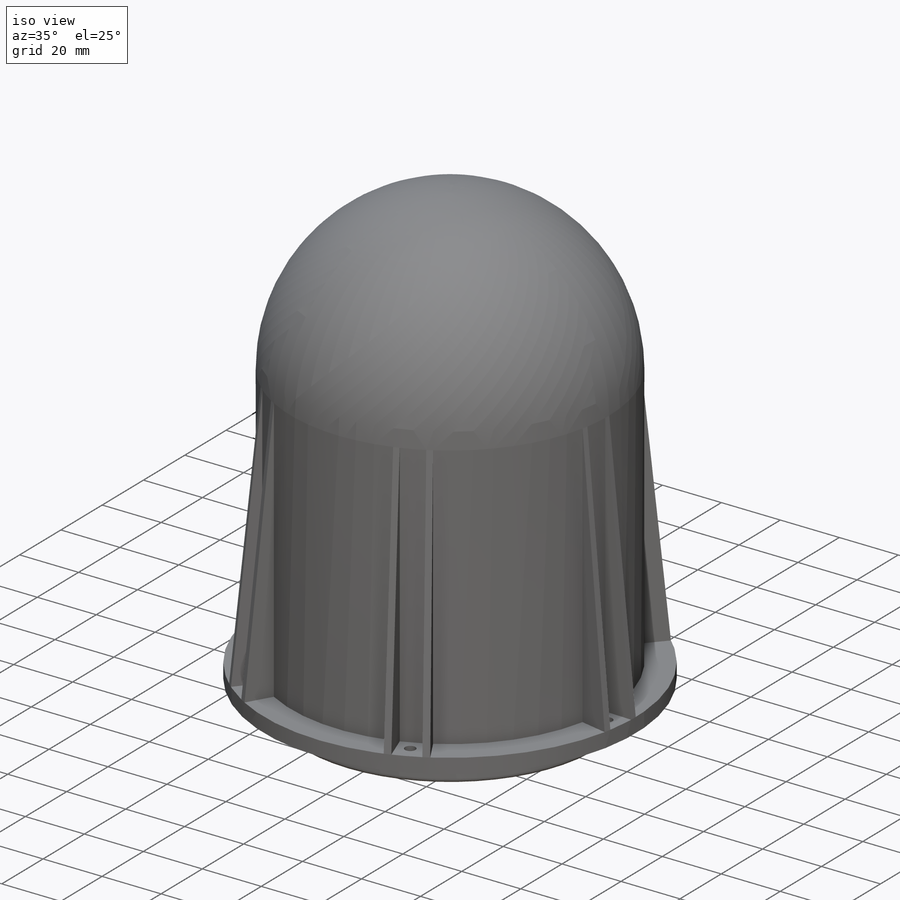
[diagram: iso view]
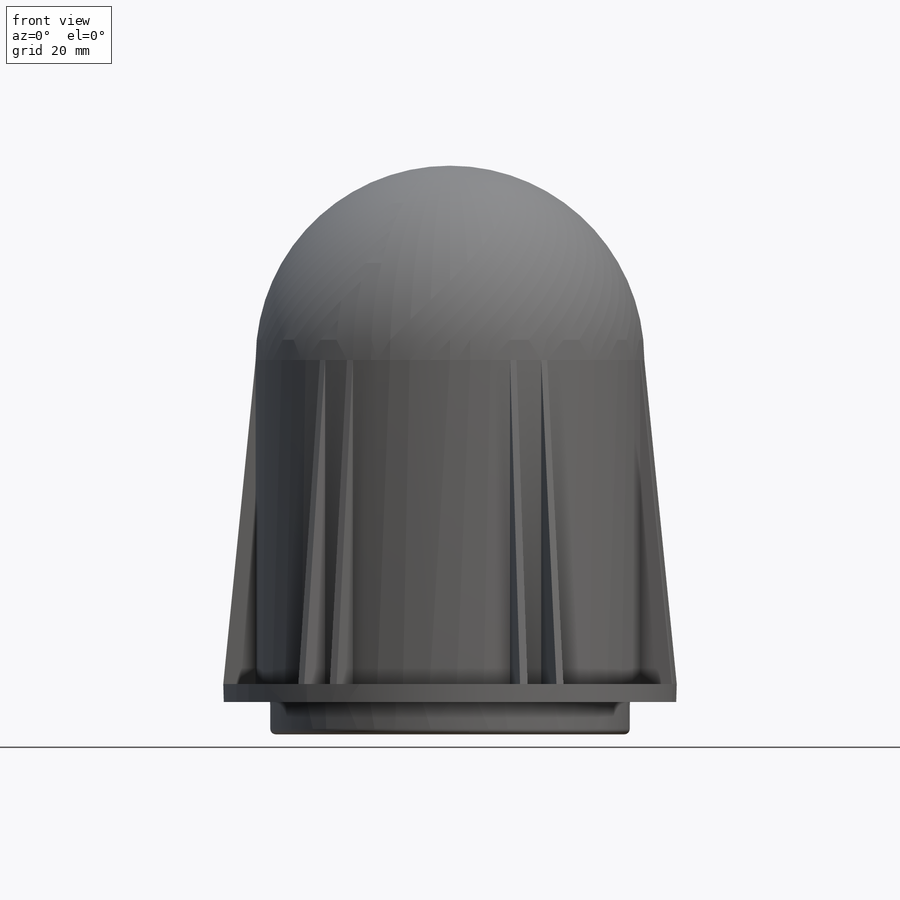
[diagram: front view]
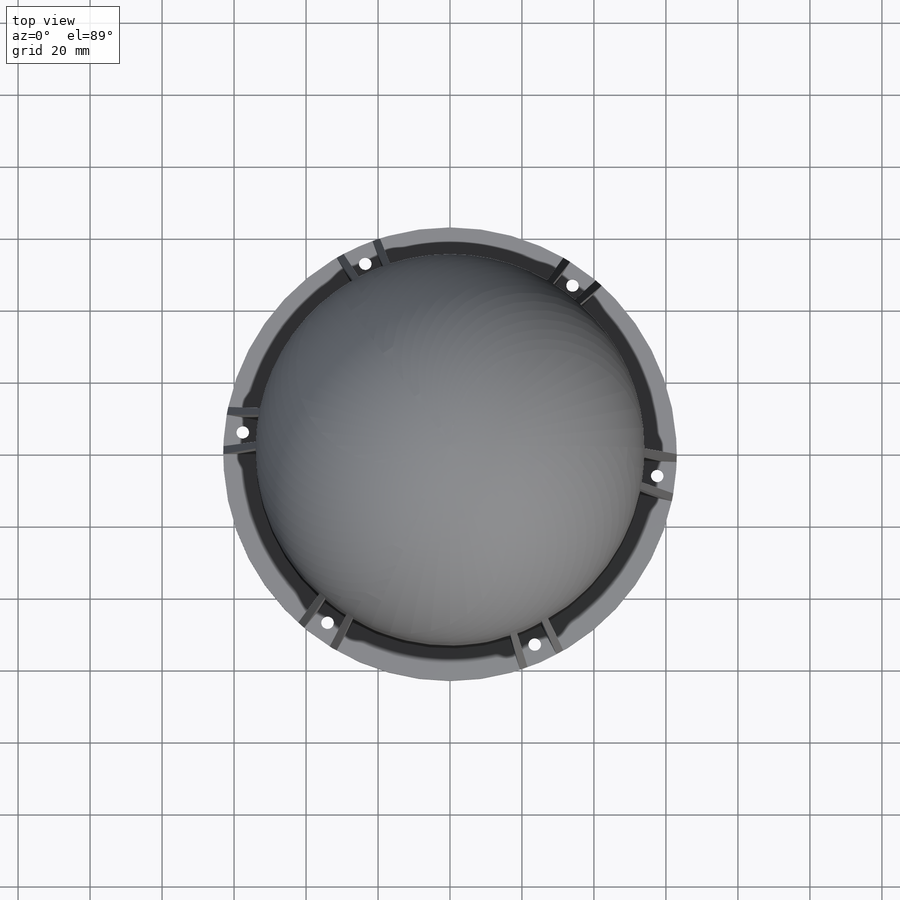
[diagram: top view]
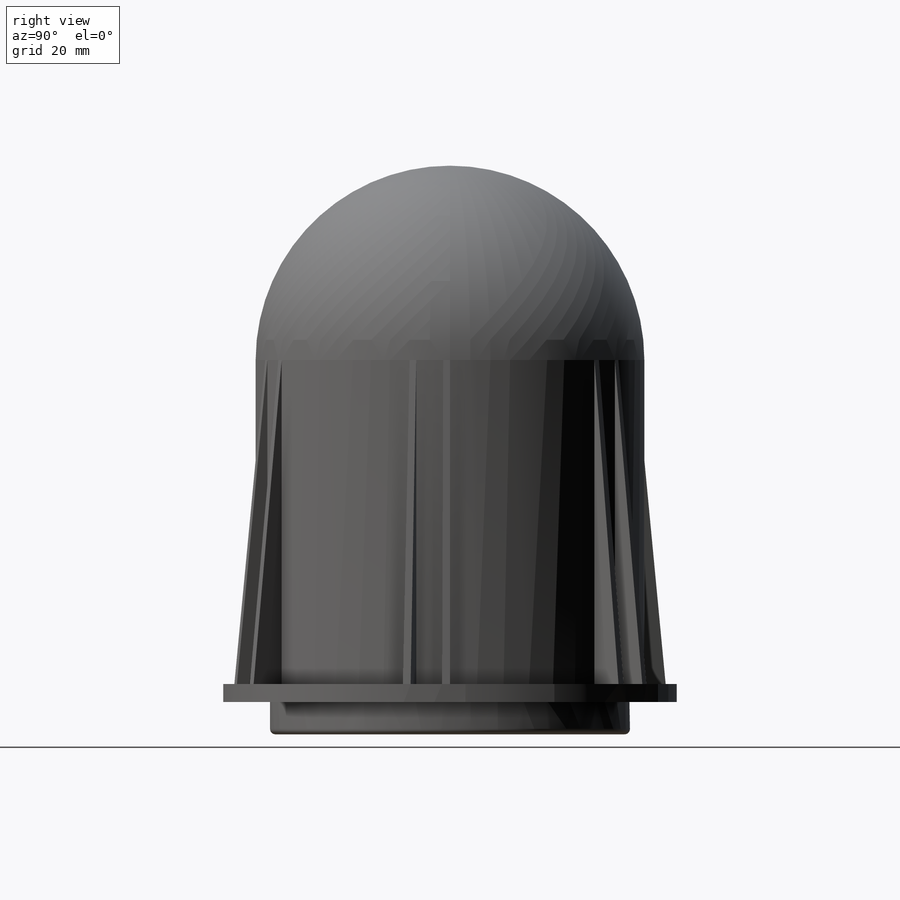
[diagram: right view]
SOLIDWORKS PART (.sldprt)
format: sldprt  version: not decoded by parser v0  size: 450,560 bytes
history: native  units: mm
features: sketch x7, pattern_circular x4, extrude x3, revolve x2, fillet x2, cut_extrude x2, plane x2, material x1 (+12 scaffold rows collapsed)
feature tree (35):
  scaffold x12  (default folders/planes/origin — collapsed)
  material  "Polyester Resin"
  sketch  "Sketch1"  dims[c1.D1=50.0mm c1.D2=9.0mm c1.D3=5.0mm c1.D4=4.0mm c1.D5=4.0mm c1.D6=50.0mm c1.D7=13.0mm c2.D1=50.0mm]
  revolve  "Revolve1"  Angle=360deg
  fillet  "Fillet1"  Radius=2mm
  fillet  "Fillet3"  Radius=1.5mm
  sketch  "Sketch2"  dims[D1=40.0mm]
  revolve  "Revolve2"  Angle=3deg
  pattern_circular  "CirPattern1"  Count=2 Angle=17deg
  sketch  "Sketch3"  dims[D2=4.0mm D3=12.0mm D1=7.0mm]
  cut_extrude  "Cut-Extrude1"  [1 undecoded]
  pattern_circular  "CirPattern2"  Count=6 Angle=360deg
  plane  "Plane2"  Offset=40mm
  sketch  "Sketch4"  dims[D1=15.0mm D2=2.5mm D3=1.0mm D4=2.5mm]
  extrude  "Boss-Extrude1"  Depth=0mm
  sketch  "Sketch6"  dims[D3=8.0mm D5=2.5mm D1=4.5mm D2=3.0mm D4=6.0mm]
  extrude  "Boss-Extrude2"  [1 undecoded]
  pattern_circular  "CirPattern3"  Count=2 Angle=360deg
  plane  "Plane3"  Offset=66mm
  sketch  "Sketch7"  dims[D2=30.0mm D1=3.0mm]
  extrude  "Boss-Extrude3"  [1 undecoded]
  sketch  "Sketch8"  dims[D1=6.0mm D2=5.0mm]
  cut_extrude  "Cut-Extrude2"  [1 undecoded]
  pattern_circular  "CirPattern4"  Count=2 Angle=90deg
decode coverage: 16 of 20 modeling features carry decoded parameters
note: 4 parameter values undecoded
summary: no parameter record found for 4 features
note: suppression state not decoded; provenance and decode notes live in map.json
